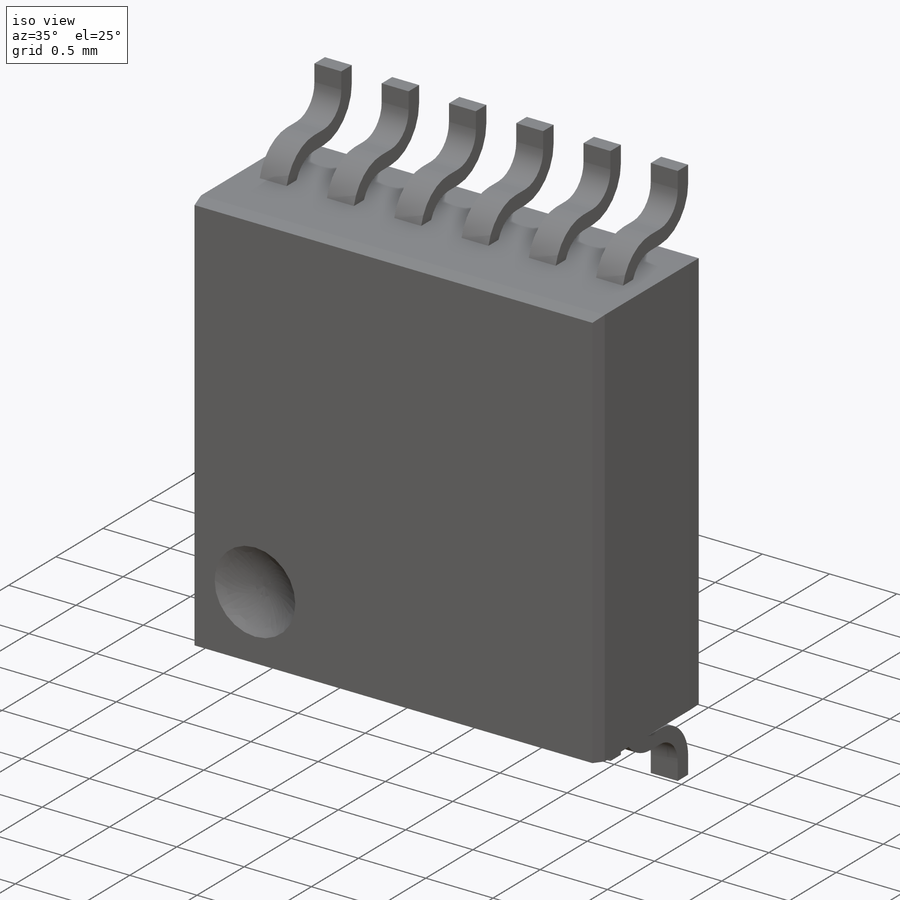
[diagram: iso view]
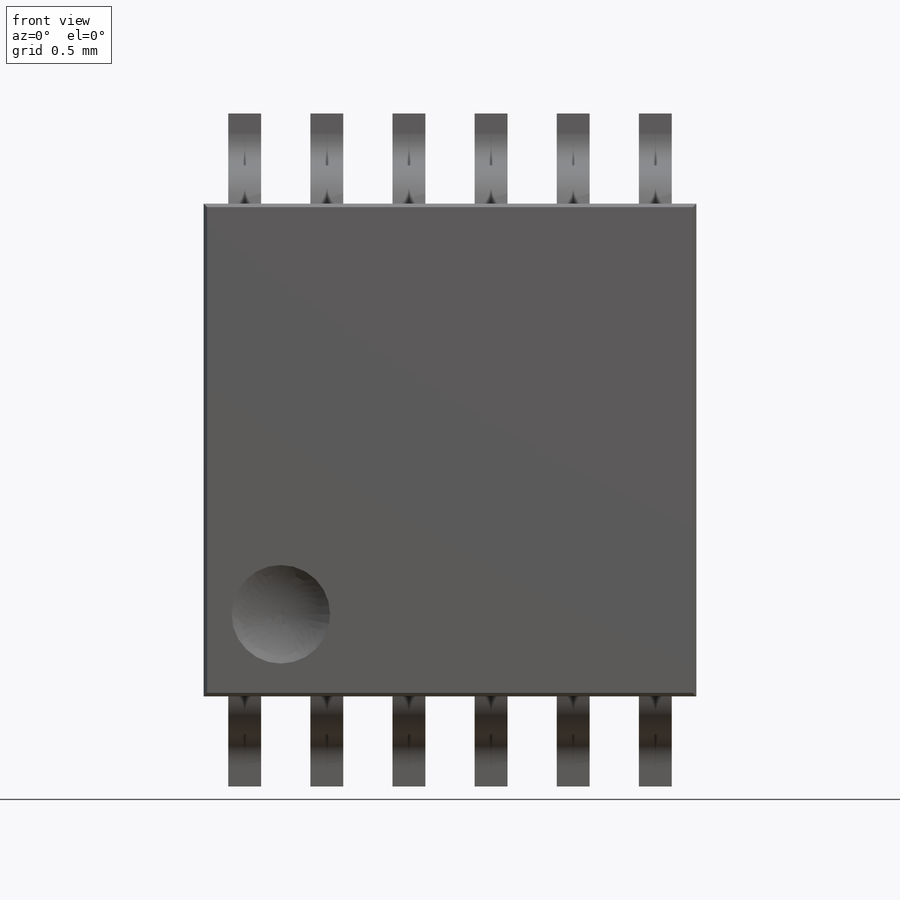
[diagram: front view]
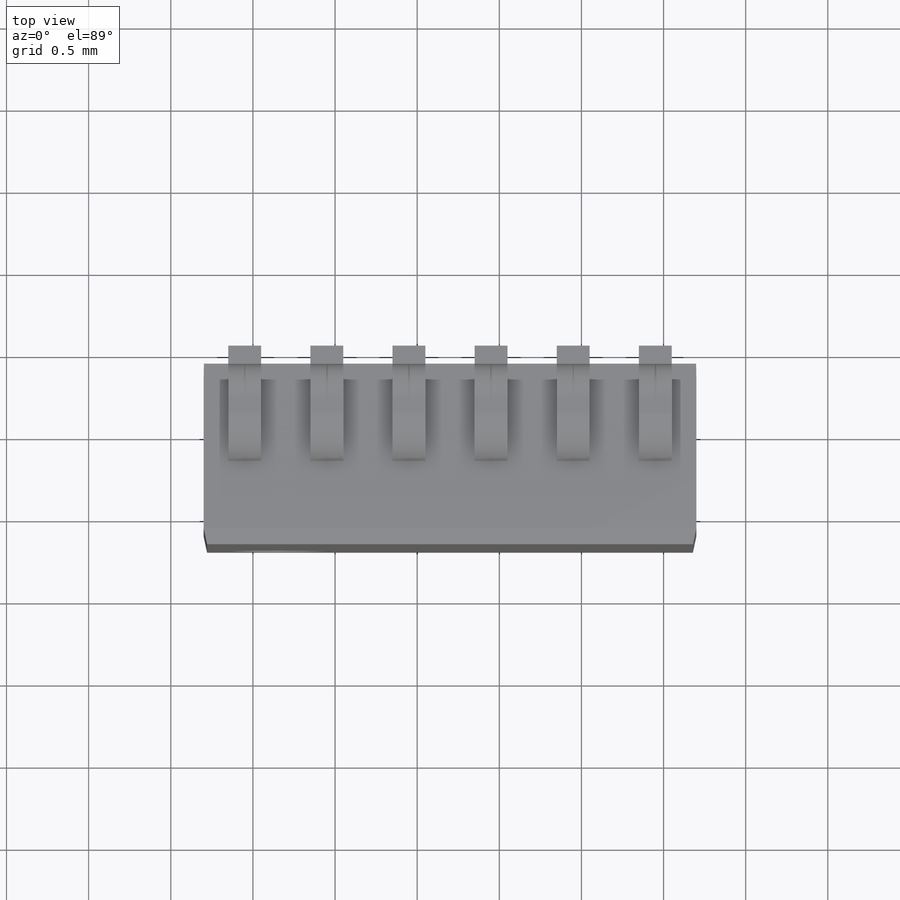
[diagram: top view]
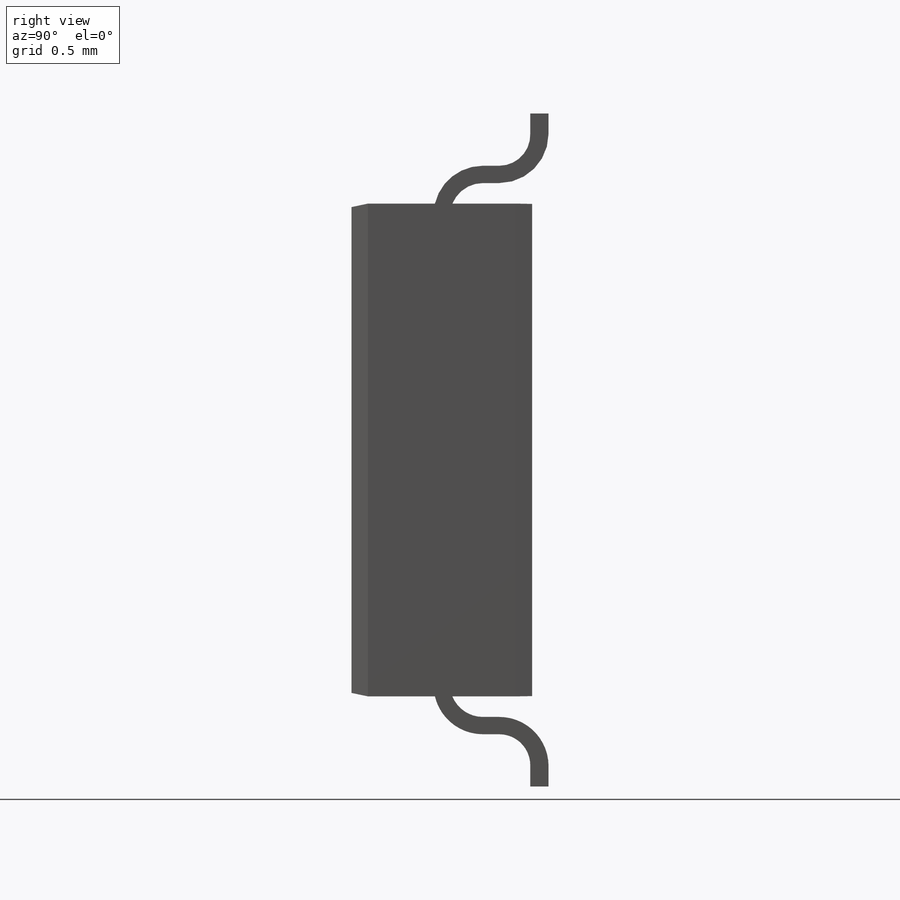
[diagram: right view]
SOLIDWORKS PART (.sldprt)
format: sldprt  version: not decoded by parser v0  size: 471,552 bytes
history: native  units: mm
features: sketch x5, cut_extrude x3, plane x2, extrude x2, chamfer x2, material x1, mirror x1, dome x1 (+12 scaffold rows collapsed)
feature tree (29):
  scaffold x12  (default folders/planes/origin — collapsed)
  material  "Material <not specified>"
  plane  "Plane1"  Offset=0.1mm
  sketch  "Sketch1"  dims[c1.D1=3.3mm c1.D2=3.0mm c2.D1=3.3mm c2.D3=3.0mm]
  extrude  "Extrude2"  Depth=1.1mm
  chamfer  "Chamfer2"  Distance=0.1mm Angle=12deg
  chamfer  "Chamfer3"  Distance=0.1mm Angle=1deg
  sketch  "Sketch2"  dims[c1.D1=1.025mm c1.D2=0.65mm c2.D1=0.2mm c2.D2=0.2mm c2.D3=0.15mm c3.D2=6.0]
  extrude  "Extrude3"  Depth=0.7mm
  sketch  "Sketch3"  dims[c1.D1=0.3mm c1.D3=0.3mm c2.D1=0.6mm c2.D2=0.1mm c2.D4=0.1mm]
  cut_extrude  "Extrude4"  [1 undecoded]
  plane  "Plane2"
  mirror  "Mirror1"
  sketch  "Sketch4"  dims[D1=1.025mm]
  cut_extrude  "Extrude5"  Depth=0.001mm
  dome  "Dome1"
  sketch  "Sketch5"
  cut_extrude  "Cut-Extrude1"  Depth=0.02mm
decode coverage: 10 of 14 modeling features carry decoded parameters
note: 1 parameter value undecoded
note: suppression state not decoded; provenance and decode notes live in map.json
